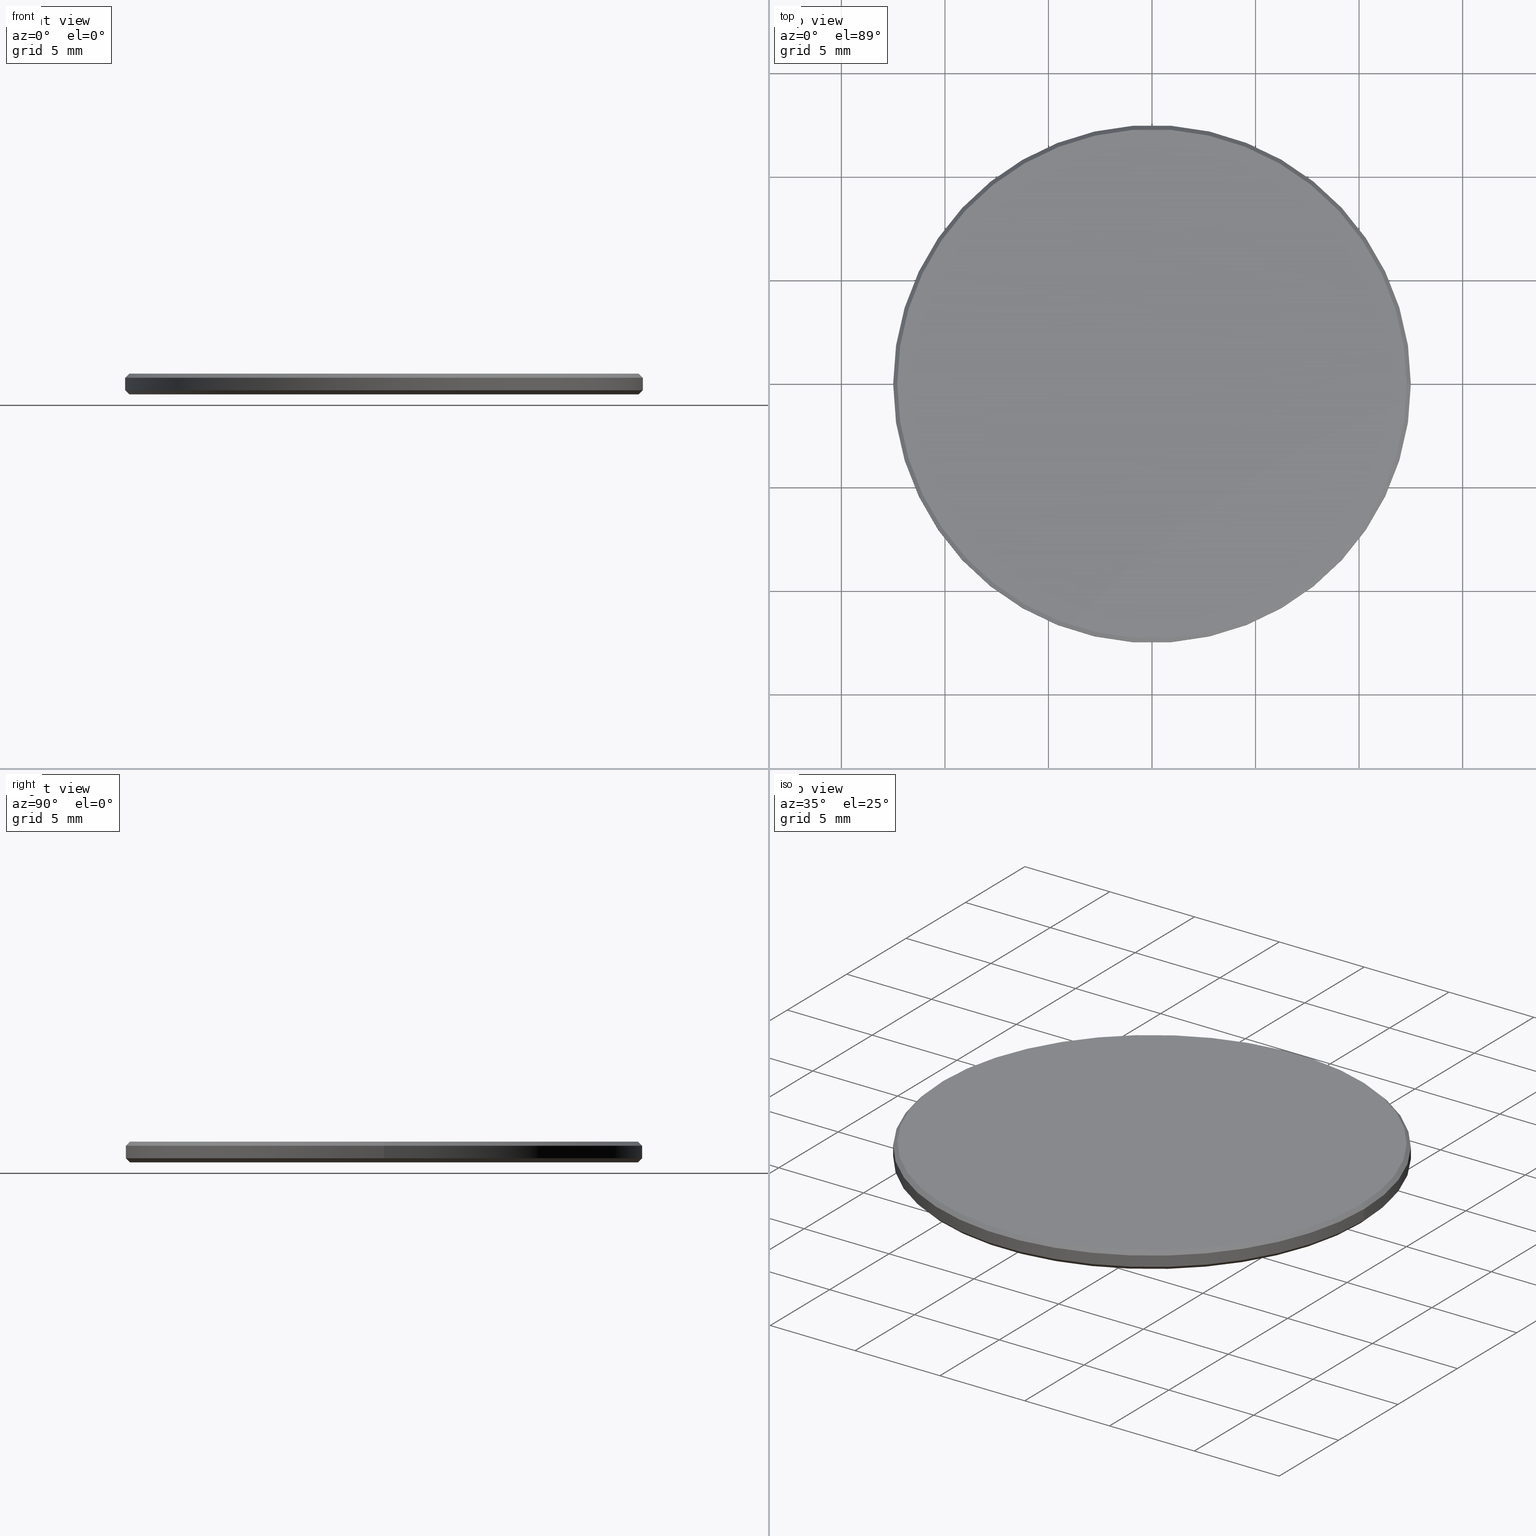
[diagram: canonical four-view strip — front | top / right | iso, engineering-drawing reading convention]
A machine part, canonical four-view strip (front | top / right | iso — engineering-drawing reading convention). The complete STEP part file that produces these views, byte-faithful:
ISO-10303-21;
HEADER;
FILE_DESCRIPTION (( 'STEP AP214' ),
    '1' );
FILE_NAME ('GNIF-1000-10600-D25.STEP',
    '2024-07-19T14:20:24',
    ( '' ),
    ( '' ),
    'SwSTEP 2.0',
    'SolidWorks 2022',
    '' );
FILE_SCHEMA (( 'AUTOMOTIVE_DESIGN' ));
ENDSEC;

DATA;
#1 = DIRECTION ( 'NONE',  ( 0.7071067811865474617, 0.000000000000000000, 0.7071067811865474617 ) ) ;
#2 = DIRECTION ( 'NONE',  ( 0.000000000000000000, 0.000000000000000000, 1.000000000000000000 ) ) ;
#3 = ORIENTED_EDGE ( 'NONE', *, *, #62, .T. ) ;
#4 = AXIS2_PLACEMENT_3D ( 'NONE', #240, #166, #76 ) ;
#5 = DIRECTION ( 'NONE',  ( -0.000000000000000000, -0.000000000000000000, -1.000000000000000000 ) ) ;
#6 =( NAMED_UNIT ( * ) SI_UNIT ( $, .STERADIAN. ) SOLID_ANGLE_UNIT ( ) );
#7 = LINE ( 'NONE', #118, #162 ) ;
#8 = CIRCLE ( 'NONE', #200, 12.30000000000000249 ) ;
#9 = ORIENTED_EDGE ( 'NONE', *, *, #62, .F. ) ;
#10 = ORIENTED_EDGE ( 'NONE', *, *, #168, .F. ) ;
#11 = VECTOR ( 'NONE', #91, 1000.000000000000000 ) ;
#12 = ORIENTED_EDGE ( 'NONE', *, *, #168, .T. ) ;
#13 = ORIENTED_EDGE ( 'NONE', *, *, #227, .T. ) ;
#14 = DIRECTION ( 'NONE',  ( 1.000000000000000000, 0.000000000000000000, 0.000000000000000000 ) ) ;
#15 = EDGE_CURVE ( 'NONE', #190, #151, #20, .T. ) ;
#16 = ORIENTED_EDGE ( 'NONE', *, *, #96, .F. ) ;
#17 = CARTESIAN_POINT ( 'NONE',  ( 0.000000000000000000, 0.000000000000000000, 1.000000000000000000 ) ) ;
#18 = PRESENTATION_STYLE_ASSIGNMENT (( #61 ) ) ;
#19 = CYLINDRICAL_SURFACE ( 'NONE', #79, 12.50000000000000000 ) ;
#20 = CIRCLE ( 'NONE', #110, 12.30000000000000249 ) ;
#21 = CARTESIAN_POINT ( 'NONE',  ( 0.000000000000000000, 0.000000000000000000, 0.8000000000000029310 ) ) ;
#22 = FILL_AREA_STYLE ('',( #238 ) ) ;
#23 = DIRECTION ( 'NONE',  ( -0.7071067811865474617, 8.659560562354932858E-17, 0.7071067811865474617 ) ) ;
#24 = ADVANCED_FACE ( 'NONE', ( #195 ), #42, .T. ) ;
#25 =( LENGTH_UNIT ( ) NAMED_UNIT ( * ) SI_UNIT ( .MILLI., .METRE. ) );
#26 = APPLICATION_CONTEXT ( 'automotive_design' ) ;
#27 = APPLICATION_PROTOCOL_DEFINITION ( 'draft international standard', 'automotive_design', 1998, #26 ) ;
#28 = VERTEX_POINT ( 'NONE', #84 ) ;
#29 = FACE_OUTER_BOUND ( 'NONE', #133, .T. ) ;
#30 = COLOUR_RGB ( '',1.000000000000000000, 1.000000000000000000, 1.000000000000000000 ) ;
#31 = VERTEX_POINT ( 'NONE', #237 ) ;
#32 = DIRECTION ( 'NONE',  ( 1.000000000000000000, 0.000000000000000000, 0.000000000000000000 ) ) ;
#33 = CIRCLE ( 'NONE', #165, 12.50000000000000000 ) ;
#34 = EDGE_LOOP ( 'NONE', ( #167, #67, #12, #231 ) ) ;
#35 = EDGE_CURVE ( 'NONE', #82, #160, #33, .T. ) ;
#36 = DIRECTION ( 'NONE',  ( 1.000000000000000000, 0.000000000000000000, 0.000000000000000000 ) ) ;
#37 = CIRCLE ( 'NONE', #66, 12.29999999999999893 ) ;
#38 = CARTESIAN_POINT ( 'NONE',  ( 0.000000000000000000, 0.000000000000000000, 0.000000000000000000 ) ) ;
#39 = DIRECTION ( 'NONE',  ( 1.000000000000000000, 0.000000000000000000, -0.000000000000000000 ) ) ;
#40 = CARTESIAN_POINT ( 'NONE',  ( -12.29999999999999893, 0.000000000000000000, 1.000000000000000000 ) ) ;
#41 = CARTESIAN_POINT ( 'NONE',  ( 12.30000000000000249, 0.000000000000000000, 0.000000000000000000 ) ) ;
#42 = CONICAL_SURFACE ( 'NONE', #134, 12.50000000000000000, 0.7853981633974482790 ) ;
#43 = PRODUCT ( 'GNIF-1000-10600-D25', 'GNIF-1000-10600-D25', '', ( #225 ) ) ;
#44 = CIRCLE ( 'NONE', #215, 12.50000000000000000 ) ;
#45 = DIRECTION ( 'NONE',  ( 0.7071067811865566766, 8.659560562355045024E-17, -0.7071067811865383579 ) ) ;
#46 = DIRECTION ( 'NONE',  ( 0.000000000000000000, 0.000000000000000000, 1.000000000000000000 ) ) ;
#47 = AXIS2_PLACEMENT_3D ( 'NONE', #216, #220, #36 ) ;
#48 =( NAMED_UNIT ( * ) PLANE_ANGLE_UNIT ( ) SI_UNIT ( $, .RADIAN. ) );
#49 = ORIENTED_EDGE ( 'NONE', *, *, #35, .F. ) ;
#50 = DIRECTION ( 'NONE',  ( 0.000000000000000000, 0.000000000000000000, -1.000000000000000000 ) ) ;
#51 = DIRECTION ( 'NONE',  ( 1.000000000000000000, 0.000000000000000000, 0.000000000000000000 ) ) ;
#52 = CARTESIAN_POINT ( 'NONE',  ( 0.000000000000000000, 0.000000000000000000, 0.1999999999999987899 ) ) ;
#53 = CARTESIAN_POINT ( 'NONE',  ( -12.50000000000000000, 0.000000000000000000, 0.1999999999999987899 ) ) ;
#54 = CARTESIAN_POINT ( 'NONE',  ( 0.000000000000000000, 0.000000000000000000, 0.8000000000000029310 ) ) ;
#55 = FACE_OUTER_BOUND ( 'NONE', #111, .T. ) ;
#56 = VECTOR ( 'NONE', #1, 1000.000000000000114 ) ;
#57 = CARTESIAN_POINT ( 'NONE',  ( 0.000000000000000000, 0.000000000000000000, 1.000000000000000000 ) ) ;
#58 = LINE ( 'NONE', #191, #56 ) ;
#59 = ADVANCED_FACE ( 'NONE', ( #29 ), #153, .T. ) ;
#60 = FACE_OUTER_BOUND ( 'NONE', #124, .T. ) ;
#61 = SURFACE_STYLE_USAGE ( .BOTH. , #182 ) ;
#62 = EDGE_CURVE ( 'NONE', #177, #31, #73, .T. ) ;
#63 = ADVANCED_BREP_SHAPE_REPRESENTATION ( 'GNIF-1000-10600-D25', ( #183, #171 ), #196 ) ;
#64 = PRODUCT_DEFINITION_SHAPE ( 'NONE', 'NONE',  #122 ) ;
#65 = AXIS2_PLACEMENT_3D ( 'NONE', #201, #236, #219 ) ;
#66 = AXIS2_PLACEMENT_3D ( 'NONE', #205, #169, #128 ) ;
#67 = ORIENTED_EDGE ( 'NONE', *, *, #98, .T. ) ;
#68 = DIRECTION ( 'NONE',  ( -0.000000000000000000, -0.000000000000000000, -1.000000000000000000 ) ) ;
#69 = UNCERTAINTY_MEASURE_WITH_UNIT (LENGTH_MEASURE( 1.000000000000000082E-05 ), #94, 'distance_accuracy_value', 'NONE');
#70 = CARTESIAN_POINT ( 'NONE',  ( 0.000000000000000000, 0.000000000000000000, 0.000000000000000000 ) ) ;
#71 = ORIENTED_EDGE ( 'NONE', *, *, #139, .F. ) ;
#72 = DIRECTION ( 'NONE',  ( 0.000000000000000000, 0.000000000000000000, -1.000000000000000000 ) ) ;
#73 = LINE ( 'NONE', #235, #188 ) ;
#74 = LINE ( 'NONE', #208, #11 ) ;
#75 = VECTOR ( 'NONE', #149, 1000.000000000000000 ) ;
#76 = DIRECTION ( 'NONE',  ( 1.000000000000000000, 0.000000000000000000, 0.000000000000000000 ) ) ;
#77 = DIRECTION ( 'NONE',  ( -1.000000000000000000, 0.000000000000000000, 0.000000000000000000 ) ) ;
#78 = EDGE_CURVE ( 'NONE', #151, #190, #8, .T. ) ;
#79 = AXIS2_PLACEMENT_3D ( 'NONE', #17, #224, #150 ) ;
#80 = SHAPE_DEFINITION_REPRESENTATION ( #64, #63 ) ;
#81 = AXIS2_PLACEMENT_3D ( 'NONE', #158, #72, #144 ) ;
#82 = VERTEX_POINT ( 'NONE', #53 ) ;
#83 = ORIENTED_EDGE ( 'NONE', *, *, #139, .T. ) ;
#84 = CARTESIAN_POINT ( 'NONE',  ( 12.50000000000000000, 1.530808498934191521E-15, 0.8000000000000029310 ) ) ;
#85 = ORIENTED_EDGE ( 'NONE', *, *, #15, .T. ) ;
#86 = UNCERTAINTY_MEASURE_WITH_UNIT (LENGTH_MEASURE( 1.000000000000000082E-05 ), #25, 'distance_accuracy_value', 'NONE');
#87 = EDGE_LOOP ( 'NONE', ( #141, #83 ) ) ;
#88 = PLANE ( 'NONE',  #136 ) ;
#89 = ADVANCED_FACE ( 'NONE', ( #159 ), #148, .T. ) ;
#90 = STYLED_ITEM ( 'NONE', ( #115 ), #63 ) ;
#91 = DIRECTION ( 'NONE',  ( -0.000000000000000000, -0.000000000000000000, -1.000000000000000000 ) ) ;
#92 = CLOSED_SHELL ( 'NONE', ( #59, #89, #189, #142, #221, #175, #116, #24 ) ) ;
#93 = DIRECTION ( 'NONE',  ( 0.000000000000000000, 0.000000000000000000, -1.000000000000000000 ) ) ;
#94 =( LENGTH_UNIT ( ) NAMED_UNIT ( * ) SI_UNIT ( .MILLI., .METRE. ) );
#95 = PRODUCT_DEFINITION_FORMATION_WITH_SPECIFIED_SOURCE ( '�κ�', '', #43, .NOT_KNOWN. ) ;
#96 = EDGE_CURVE ( 'NONE', #160, #82, #143, .T. ) ;
#97 = APPLICATION_CONTEXT ( 'automotive_design' ) ;
#98 = EDGE_CURVE ( 'NONE', #28, #31, #178, .T. ) ;
#99 = ORIENTED_EDGE ( 'NONE', *, *, #185, .T. ) ;
#100 = FACE_OUTER_BOUND ( 'NONE', #181, .T. ) ;
#101 = DIRECTION ( 'NONE',  ( -0.000000000000000000, -0.000000000000000000, 1.000000000000000000 ) ) ;
#102 = ORIENTED_EDGE ( 'NONE', *, *, #98, .F. ) ;
#103 = ORIENTED_EDGE ( 'NONE', *, *, #125, .F. ) ;
#104 = ORIENTED_EDGE ( 'NONE', *, *, #78, .F. ) ;
#105 = CIRCLE ( 'NONE', #4, 12.29999999999999893 ) ;
#106 =( GEOMETRIC_REPRESENTATION_CONTEXT ( 3 ) GLOBAL_UNCERTAINTY_ASSIGNED_CONTEXT ( ( #86 ) ) GLOBAL_UNIT_ASSIGNED_CONTEXT ( ( #25, #132, #6 ) ) REPRESENTATION_CONTEXT ( 'NONE', 'WORKASPACE' ) );
#107 = CARTESIAN_POINT ( 'NONE',  ( -12.30000000000000249, 1.518562030942718164E-15, 0.000000000000000000 ) ) ;
#108 = FACE_OUTER_BOUND ( 'NONE', #34, .T. ) ;
#109 = PLANE ( 'NONE',  #154 ) ;
#110 = AXIS2_PLACEMENT_3D ( 'NONE', #233, #68, #138 ) ;
#111 = EDGE_LOOP ( 'NONE', ( #198, #99, #217, #10 ) ) ;
#112 = DIRECTION ( 'NONE',  ( 0.000000000000000000, 0.000000000000000000, 1.000000000000000000 ) ) ;
#113 =( NAMED_UNIT ( * ) SI_UNIT ( $, .STERADIAN. ) SOLID_ANGLE_UNIT ( ) );
#114 =( GEOMETRIC_REPRESENTATION_CONTEXT ( 3 ) GLOBAL_UNCERTAINTY_ASSIGNED_CONTEXT ( ( #69 ) ) GLOBAL_UNIT_ASSIGNED_CONTEXT ( ( #94, #187, #130 ) ) REPRESENTATION_CONTEXT ( 'NONE', 'WORKASPACE' ) );
#115 = PRESENTATION_STYLE_ASSIGNMENT (( #210 ) ) ;
#116 = ADVANCED_FACE ( 'NONE', ( #100 ), #211, .T. ) ;
#117 = DIRECTION ( 'NONE',  ( 1.000000000000000000, 0.000000000000000000, 0.000000000000000000 ) ) ;
#118 = CARTESIAN_POINT ( 'NONE',  ( 12.29999999999999893, 1.506315562951244216E-15, 1.000000000000000000 ) ) ;
#119 = DIRECTION ( 'NONE',  ( 1.000000000000000000, 0.000000000000000000, 0.000000000000000000 ) ) ;
#120 = CARTESIAN_POINT ( 'NONE',  ( 0.000000000000000000, 0.000000000000000000, 1.000000000000000000 ) ) ;
#121 = ORIENTED_EDGE ( 'NONE', *, *, #227, .F. ) ;
#122 = PRODUCT_DEFINITION ( 'δ֪', '', #95, #145 ) ;
#123 = ORIENTED_EDGE ( 'NONE', *, *, #15, .F. ) ;
#124 = EDGE_LOOP ( 'NONE', ( #85, #135 ) ) ;
#125 = EDGE_CURVE ( 'NONE', #190, #160, #58, .T. ) ;
#126 = COLOUR_RGB ( '',1.000000000000000000, 1.000000000000000000, 1.000000000000000000 ) ;
#127 = LINE ( 'NONE', #186, #75 ) ;
#128 = DIRECTION ( 'NONE',  ( 1.000000000000000000, 0.000000000000000000, 0.000000000000000000 ) ) ;
#129 = CARTESIAN_POINT ( 'NONE',  ( 12.29999999999999893, 1.518562030942717967E-15, 1.000000000000000000 ) ) ;
#130 =( NAMED_UNIT ( * ) SI_UNIT ( $, .STERADIAN. ) SOLID_ANGLE_UNIT ( ) );
#131 = SURFACE_STYLE_FILL_AREA ( #230 ) ;
#132 =( NAMED_UNIT ( * ) PLANE_ANGLE_UNIT ( ) SI_UNIT ( $, .RADIAN. ) );
#133 = EDGE_LOOP ( 'NONE', ( #104, #13, #16, #103 ) ) ;
#134 = AXIS2_PLACEMENT_3D ( 'NONE', #52, #101, #32 ) ;
#135 = ORIENTED_EDGE ( 'NONE', *, *, #78, .T. ) ;
#136 = AXIS2_PLACEMENT_3D ( 'NONE', #161, #2, #146 ) ;
#137 = VERTEX_POINT ( 'NONE', #129 ) ;
#138 = DIRECTION ( 'NONE',  ( 1.000000000000000000, 0.000000000000000000, 0.000000000000000000 ) ) ;
#139 = EDGE_CURVE ( 'NONE', #137, #177, #37, .T. ) ;
#140 = ORIENTED_EDGE ( 'NONE', *, *, #125, .T. ) ;
#141 = ORIENTED_EDGE ( 'NONE', *, *, #214, .T. ) ;
#142 = ADVANCED_FACE ( 'NONE', ( #108 ), #207, .T. ) ;
#143 = CIRCLE ( 'NONE', #47, 12.50000000000000000 ) ;
#144 = DIRECTION ( 'NONE',  ( -1.000000000000000000, 0.000000000000000000, 0.000000000000000000 ) ) ;
#145 = PRODUCT_DEFINITION_CONTEXT ( 'detailed design', #97, 'design' ) ;
#146 = DIRECTION ( 'NONE',  ( 1.000000000000000000, 0.000000000000000000, -0.000000000000000000 ) ) ;
#147 = FACE_OUTER_BOUND ( 'NONE', #87, .T. ) ;
#148 = CONICAL_SURFACE ( 'NONE', #81, 12.29999999999999893, 0.7853981633974612686 ) ;
#149 = DIRECTION ( 'NONE',  ( -0.000000000000000000, -0.000000000000000000, -1.000000000000000000 ) ) ;
#150 = DIRECTION ( 'NONE',  ( -1.000000000000000000, 0.000000000000000000, 0.000000000000000000 ) ) ;
#151 = VERTEX_POINT ( 'NONE', #107 ) ;
#152 = SURFACE_SIDE_STYLE ('',( #131 ) ) ;
#153 = CONICAL_SURFACE ( 'NONE', #65, 12.50000000000000000, 0.7853981633974482790 ) ;
#154 = AXIS2_PLACEMENT_3D ( 'NONE', #38, #112, #39 ) ;
#155 = ORIENTED_EDGE ( 'NONE', *, *, #229, .F. ) ;
#156 = PRODUCT_RELATED_PRODUCT_CATEGORY ( 'part', '', ( #43 ) ) ;
#157 = DIRECTION ( 'NONE',  ( -0.000000000000000000, -0.000000000000000000, 1.000000000000000000 ) ) ;
#158 = CARTESIAN_POINT ( 'NONE',  ( 0.000000000000000000, 0.000000000000000000, 1.000000000000000000 ) ) ;
#159 = FACE_OUTER_BOUND ( 'NONE', #173, .T. ) ;
#160 = VERTEX_POINT ( 'NONE', #164 ) ;
#161 = CARTESIAN_POINT ( 'NONE',  ( 0.000000000000000000, 0.000000000000000000, 1.000000000000000000 ) ) ;
#162 = VECTOR ( 'NONE', #45, 1000.000000000000000 ) ;
#163 = DIRECTION ( 'NONE',  ( 0.000000000000000000, 0.000000000000000000, -1.000000000000000000 ) ) ;
#164 = CARTESIAN_POINT ( 'NONE',  ( 12.50000000000000000, 1.530808498934191521E-15, 0.1999999999999987899 ) ) ;
#165 = AXIS2_PLACEMENT_3D ( 'NONE', #179, #157, #51 ) ;
#166 = DIRECTION ( 'NONE',  ( 0.000000000000000000, 0.000000000000000000, 1.000000000000000000 ) ) ;
#167 = ORIENTED_EDGE ( 'NONE', *, *, #185, .F. ) ;
#168 = EDGE_CURVE ( 'NONE', #31, #82, #127, .T. ) ;
#169 = DIRECTION ( 'NONE',  ( 0.000000000000000000, 0.000000000000000000, 1.000000000000000000 ) ) ;
#170 = STYLED_ITEM ( 'NONE', ( #18 ), #183 ) ;
#171 = AXIS2_PLACEMENT_3D ( 'NONE', #212, #46, #117 ) ;
#172 = FILL_AREA_STYLE_COLOUR ( '', #30 ) ;
#173 = EDGE_LOOP ( 'NONE', ( #71, #218, #202, #9 ) ) ;
#174 = EDGE_LOOP ( 'NONE', ( #121, #123, #140, #49 ) ) ;
#175 = ADVANCED_FACE ( 'NONE', ( #60 ), #109, .F. ) ;
#176 = AXIS2_PLACEMENT_3D ( 'NONE', #120, #93, #223 ) ;
#177 = VERTEX_POINT ( 'NONE', #40 ) ;
#178 = CIRCLE ( 'NONE', #213, 12.50000000000000000 ) ;
#179 = CARTESIAN_POINT ( 'NONE',  ( 0.000000000000000000, 0.000000000000000000, 0.1999999999999987899 ) ) ;
#180 = DIRECTION ( 'NONE',  ( -0.000000000000000000, -0.000000000000000000, -1.000000000000000000 ) ) ;
#181 = EDGE_LOOP ( 'NONE', ( #155, #197, #3, #102 ) ) ;
#182 = SURFACE_SIDE_STYLE ('',( #184 ) ) ;
#183 = MANIFOLD_SOLID_BREP ( '����1', #92 ) ;
#184 = SURFACE_STYLE_FILL_AREA ( #22 ) ;
#185 = EDGE_CURVE ( 'NONE', #28, #160, #74, .T. ) ;
#186 = CARTESIAN_POINT ( 'NONE',  ( -12.50000000000000000, 0.000000000000000000, 1.000000000000000000 ) ) ;
#187 =( NAMED_UNIT ( * ) PLANE_ANGLE_UNIT ( ) SI_UNIT ( $, .RADIAN. ) );
#188 = VECTOR ( 'NONE', #234, 1000.000000000000000 ) ;
#189 = ADVANCED_FACE ( 'NONE', ( #55 ), #19, .T. ) ;
#190 = VERTEX_POINT ( 'NONE', #41 ) ;
#191 = CARTESIAN_POINT ( 'NONE',  ( 12.50000000000000000, 0.000000000000000000, 0.1999999999999987899 ) ) ;
#192 = AXIS2_PLACEMENT_3D ( 'NONE', #57, #5, #77 ) ;
#193 = APPLICATION_PROTOCOL_DEFINITION ( 'draft international standard', 'automotive_design', 1998, #97 ) ;
#194 =( LENGTH_UNIT ( ) NAMED_UNIT ( * ) SI_UNIT ( .MILLI., .METRE. ) );
#195 = FACE_OUTER_BOUND ( 'NONE', #174, .T. ) ;
#196 =( GEOMETRIC_REPRESENTATION_CONTEXT ( 3 ) GLOBAL_UNCERTAINTY_ASSIGNED_CONTEXT ( ( #199 ) ) GLOBAL_UNIT_ASSIGNED_CONTEXT ( ( #194, #48, #113 ) ) REPRESENTATION_CONTEXT ( 'NONE', 'WORKASPACE' ) );
#197 = ORIENTED_EDGE ( 'NONE', *, *, #214, .F. ) ;
#198 = ORIENTED_EDGE ( 'NONE', *, *, #206, .T. ) ;
#199 = UNCERTAINTY_MEASURE_WITH_UNIT (LENGTH_MEASURE( 1.000000000000000082E-05 ), #194, 'distance_accuracy_value', 'NONE');
#200 = AXIS2_PLACEMENT_3D ( 'NONE', #70, #180, #14 ) ;
#201 = CARTESIAN_POINT ( 'NONE',  ( 0.000000000000000000, 0.000000000000000000, 0.1999999999999987899 ) ) ;
#202 = ORIENTED_EDGE ( 'NONE', *, *, #206, .F. ) ;
#203 = PRESENTATION_LAYER_ASSIGNMENT (  '', '', ( #170 ) ) ;
#204 = DIRECTION ( 'NONE',  ( 1.000000000000000000, 0.000000000000000000, 0.000000000000000000 ) ) ;
#205 = CARTESIAN_POINT ( 'NONE',  ( 0.000000000000000000, 0.000000000000000000, 1.000000000000000000 ) ) ;
#206 = EDGE_CURVE ( 'NONE', #31, #28, #44, .T. ) ;
#207 = CYLINDRICAL_SURFACE ( 'NONE', #192, 12.50000000000000000 ) ;
#208 = CARTESIAN_POINT ( 'NONE',  ( 12.50000000000000000, 1.530808498934191521E-15, 1.000000000000000000 ) ) ;
#209 = PRESENTATION_LAYER_ASSIGNMENT (  '', '', ( #90 ) ) ;
#210 = SURFACE_STYLE_USAGE ( .BOTH. , #152 ) ;
#211 = CONICAL_SURFACE ( 'NONE', #176, 12.29999999999999893, 0.7853981633974612686 ) ;
#212 = CARTESIAN_POINT ( 'NONE',  ( 0.000000000000000000, 0.000000000000000000, 0.000000000000000000 ) ) ;
#213 = AXIS2_PLACEMENT_3D ( 'NONE', #54, #50, #119 ) ;
#214 = EDGE_CURVE ( 'NONE', #177, #137, #105, .T. ) ;
#215 = AXIS2_PLACEMENT_3D ( 'NONE', #21, #163, #204 ) ;
#216 = CARTESIAN_POINT ( 'NONE',  ( 0.000000000000000000, 0.000000000000000000, 0.1999999999999987899 ) ) ;
#217 = ORIENTED_EDGE ( 'NONE', *, *, #96, .T. ) ;
#218 = ORIENTED_EDGE ( 'NONE', *, *, #229, .T. ) ;
#219 = DIRECTION ( 'NONE',  ( 1.000000000000000000, 0.000000000000000000, 0.000000000000000000 ) ) ;
#220 = DIRECTION ( 'NONE',  ( -0.000000000000000000, -0.000000000000000000, 1.000000000000000000 ) ) ;
#221 = ADVANCED_FACE ( 'NONE', ( #147 ), #88, .T. ) ;
#222 = LINE ( 'NONE', #228, #239 ) ;
#223 = DIRECTION ( 'NONE',  ( -1.000000000000000000, 0.000000000000000000, 0.000000000000000000 ) ) ;
#224 = DIRECTION ( 'NONE',  ( -0.000000000000000000, -0.000000000000000000, -1.000000000000000000 ) ) ;
#225 = PRODUCT_CONTEXT ( 'NONE', #26, 'mechanical' ) ;
#226 = MECHANICAL_DESIGN_GEOMETRIC_PRESENTATION_REPRESENTATION (  '', ( #90 ), #106 ) ;
#227 = EDGE_CURVE ( 'NONE', #151, #82, #222, .T. ) ;
#228 = CARTESIAN_POINT ( 'NONE',  ( -12.50000000000000000, 1.530808498934191521E-15, 0.1999999999999987899 ) ) ;
#229 = EDGE_CURVE ( 'NONE', #137, #28, #7, .T. ) ;
#230 = FILL_AREA_STYLE ('',( #172 ) ) ;
#231 = ORIENTED_EDGE ( 'NONE', *, *, #35, .T. ) ;
#232 = MECHANICAL_DESIGN_GEOMETRIC_PRESENTATION_REPRESENTATION (  '', ( #170 ), #114 ) ;
#233 = CARTESIAN_POINT ( 'NONE',  ( 0.000000000000000000, 0.000000000000000000, 0.000000000000000000 ) ) ;
#234 = DIRECTION ( 'NONE',  ( -0.7071067811865566766, 0.000000000000000000, -0.7071067811865383579 ) ) ;
#235 = CARTESIAN_POINT ( 'NONE',  ( -12.29999999999999893, 0.000000000000000000, 1.000000000000000000 ) ) ;
#236 = DIRECTION ( 'NONE',  ( -0.000000000000000000, -0.000000000000000000, 1.000000000000000000 ) ) ;
#237 = CARTESIAN_POINT ( 'NONE',  ( -12.50000000000000000, 0.000000000000000000, 0.8000000000000029310 ) ) ;
#238 = FILL_AREA_STYLE_COLOUR ( '', #126 ) ;
#239 = VECTOR ( 'NONE', #23, 1000.000000000000114 ) ;
#240 = CARTESIAN_POINT ( 'NONE',  ( 0.000000000000000000, 0.000000000000000000, 1.000000000000000000 ) ) ;
ENDSEC;
END-ISO-10303-21;
